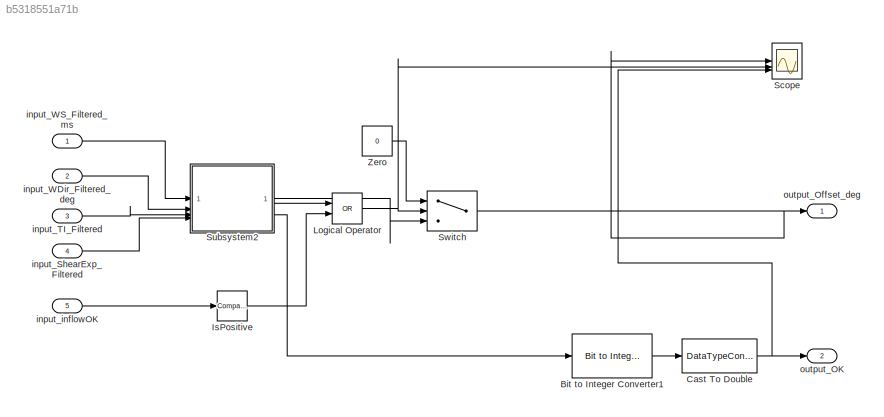
MODEL slx_b5318551a71b
KIND model
CONFIG AbsTol = auto
CONFIG EnableMultiTasking = off
CONFIG FixedStep = sample_time
CONFIG MaxStep = auto
CONFIG MinStep = auto
CONFIG RelTol = 1e-3
CONFIG SampleTimeConstraint = Unconstrained
CONFIG SolverName = FixedStepDiscrete
CONFIG StartTime = 0
CONFIG StopTime = duration
BLOCK [Reference] Bit to Integer Converter1  REF=simulink/Logic and Bit
Operations/Bit to Integer
Converter
  LibrarySourceBlock = commutil2/Bit to Integer\nConverter
  SourceBlock = simulink/Logic and Bit\nOperations/Bit to Integer\nConverter
  SourceType = Bit to Integer Converter
BLOCK [DataTypeConversion] Cast To Double
  OutDataTypeStr = double
  RndMeth = Floor
  SaturateOnIntegerOverflow = off
BLOCK [Reference] IsPositive  REF=simulink/Logic and Bit
Operations/Compare
To Zero
  SourceBlock = simulink/Logic and Bit\nOperations/Compare\nTo Zero
  SourceType = Compare To Zero
BLOCK [Logic] Logical Operator
  AllPortsSameDT = off
  Operator = OR
  OutDataTypeStr = boolean
BLOCK [Scope] Scope
  Floating = off
  NumInputPorts = 3
  ScopeSpecificationString = Simulink.scopes.TimeScopeBlockCfg('CurrentConfiguration', extmgr.ConfigurationSet(extmgr.Configuration('Core','General UI',true),extmgr.Configuration('Core','Source UI',true),extmgr.Configuration('Sources','WiredSimulink',true,'DataLoggingVariableName','ScopeData1'),extmgr.Configuration('Visuals','Time Domain',true,'SerializedDisplays',{struct('MinYLimReal','-0.00024','MaxYLimReal','0.00219','YLab...<+1526ch>
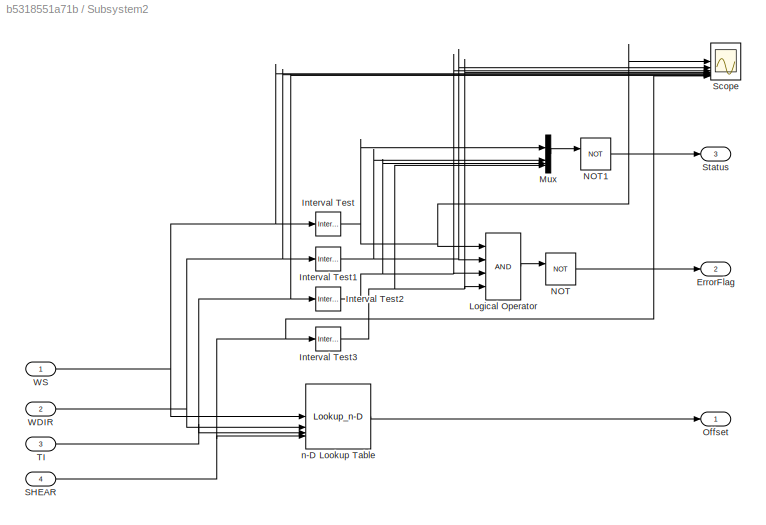
BLOCK [SubSystem] Subsystem2
BLOCK [Outport] Subsystem2/ErrorFlag
  Port = 2
  VectorParamsAs1DForOutWhenUnconnected = off
BLOCK [Reference] Subsystem2/Interval Test  REF=simulink/Logic and Bit
Operations/Interval Test
  SourceBlock = simulink/Logic and Bit\nOperations/Interval Test
  SourceType = Interval Test
BLOCK [Reference] Subsystem2/Interval Test1  REF=simulink/Logic and Bit
Operations/Interval Test
  SourceBlock = simulink/Logic and Bit\nOperations/Interval Test
  SourceType = Interval Test
BLOCK [Reference] Subsystem2/Interval Test2  REF=simulink/Logic and Bit
Operations/Interval Test
  SourceBlock = simulink/Logic and Bit\nOperations/Interval Test
  SourceType = Interval Test
BLOCK [Reference] Subsystem2/Interval Test3  REF=simulink/Logic and Bit
Operations/Interval Test
  SourceBlock = simulink/Logic and Bit\nOperations/Interval Test
  SourceType = Interval Test
BLOCK [Logic] Subsystem2/Logical Operator
  AllPortsSameDT = off
  Inputs = 4
  OutDataTypeStr = boolean
BLOCK [Mux] Subsystem2/Mux
  DisplayOption = bar
BLOCK [Logic] Subsystem2/NOT
  AllPortsSameDT = off
  IconShape = distinctive
  Operator = NOT
  OutDataTypeStr = boolean
BLOCK [Logic] Subsystem2/NOT1
  AllPortsSameDT = off
  IconShape = distinctive
  Operator = NOT
  OutDataTypeStr = boolean
BLOCK [Outport] Subsystem2/Offset
  VectorParamsAs1DForOutWhenUnconnected = off
BLOCK [Inport] Subsystem2/SHEAR
  Port = 4
BLOCK [Scope] Subsystem2/Scope
  Floating = off
  NumInputPorts = 8
  ScopeSpecificationString = Simulink.scopes.TimeScopeBlockCfg('CurrentConfiguration', extmgr.ConfigurationSet(extmgr.Configuration('Core','General UI',true),extmgr.Configuration('Core','Source UI',true),extmgr.Configuration('Sources','WiredSimulink',true),extmgr.Configuration('Visuals','Time Domain',true,'SerializedDisplays',{struct('MinYLimReal','-28.26182','MaxYLimReal','254.35638','YLabelReal','','MinYLimMag','0.00000','M...<+1706ch>
BLOCK [Outport] Subsystem2/Status
  Port = 3
  VectorParamsAs1DForOutWhenUnconnected = off
BLOCK [Inport] Subsystem2/TI
  Port = 3
BLOCK [Inport] Subsystem2/WDIR
  Port = 2
BLOCK [Inport] Subsystem2/WS
BLOCK [Lookup_n-D] Subsystem2/n-D Lookup Table
  BreakpointsForDimension1 = LUTOFFSET.WindSpeed
  BreakpointsForDimension2 = LUTOFFSET.WindDir
  BreakpointsForDimension3 = LUTOFFSET.TurbInt
  BreakpointsForDimension4 = LUTOFFSET.Shear
  ExtrapMethod = Clip
  InputPortMap = u0,u1,u2,u3
  InternalRulePriority = Speed
  NumberOfTableDimensions = 4
  RndMeth = Simplest
  Table = LUTOFFSET.Offset
  UseLastTableValue = on
BLOCK [Switch] Switch
  Criteria = u2 ~= 0
  InputSameDT = off
  SaturateOnIntegerOverflow = off
BLOCK [Constant] Zero
  OutDataTypeStr = Inherit: Inherit via back propagation
  Value = 0
BLOCK [Inport] input_ShearExp_Filtered
  Port = 4
BLOCK [Inport] input_TI_Filtered
  Port = 3
BLOCK [Inport] input_WDir_Filtered_deg
  Port = 2
BLOCK [Inport] input_WS_Filtered_ms
BLOCK [Inport] input_inflowOK
  Port = 5
BLOCK [Outport] output_OK
  Port = 2
  VectorParamsAs1DForOutWhenUnconnected = off
BLOCK [Outport] output_Offset_deg
  VectorParamsAs1DForOutWhenUnconnected = off
LINE Bit to Integer Converter1:1 -> Cast To Double:1
NET Cast To Double:1 -> Scope:3, output_OK:1
LINE IsPositive:1 -> Logical Operator:2
NET Logical Operator:1 -> Scope:2, Switch:2
NET Subsystem2/Interval Test1:1 -> Subsystem2/Logical Operator:2, Subsystem2/Mux:2, Subsystem2/Scope:2
NET Subsystem2/Interval Test2:1 -> Subsystem2/Logical Operator:3, Subsystem2/Mux:3, Subsystem2/Scope:3
NET Subsystem2/Interval Test3:1 -> Subsystem2/Logical Operator:4, Subsystem2/Mux:4, Subsystem2/Scope:4
NET Subsystem2/Interval Test:1 -> Subsystem2/Logical Operator:1, Subsystem2/Mux:1, Subsystem2/Scope:1
LINE Subsystem2/Logical Operator:1 -> Subsystem2/NOT:1
LINE Subsystem2/Mux:1 -> Subsystem2/NOT1:1
LINE Subsystem2/NOT1:1 -> Subsystem2/Status:1
LINE Subsystem2/NOT:1 -> Subsystem2/ErrorFlag:1
NET Subsystem2/SHEAR:1 -> Subsystem2/Interval Test3:1, Subsystem2/Scope:8, Subsystem2/n-D Lookup Table:4
NET Subsystem2/TI:1 -> Subsystem2/Interval Test2:1, Subsystem2/Scope:7, Subsystem2/n-D Lookup Table:3
NET Subsystem2/WDIR:1 -> Subsystem2/Interval Test1:1, Subsystem2/Scope:6, Subsystem2/n-D Lookup Table:2
NET Subsystem2/WS:1 -> Subsystem2/Interval Test:1, Subsystem2/Scope:5, Subsystem2/n-D Lookup Table:1
LINE Subsystem2/n-D Lookup Table:1 -> Subsystem2/Offset:1
LINE Subsystem2:1 -> Switch:3
LINE Subsystem2:2 -> Logical Operator:1
LINE Subsystem2:3 -> Bit to Integer Converter1:1
NET Switch:1 -> Scope:1, output_Offset_deg:1
LINE Zero:1 -> Switch:1
LINE input_ShearExp_Filtered:1 -> Subsystem2:4
LINE input_TI_Filtered:1 -> Subsystem2:3
LINE input_WDir_Filtered_deg:1 -> Subsystem2:2
LINE input_WS_Filtered_ms:1 -> Subsystem2:1
LINE input_inflowOK:1 -> IsPositive:1
note: NET lines group one-source signal fan-out (src -> all destinations, sorted); 1:1 wires keep LINE
